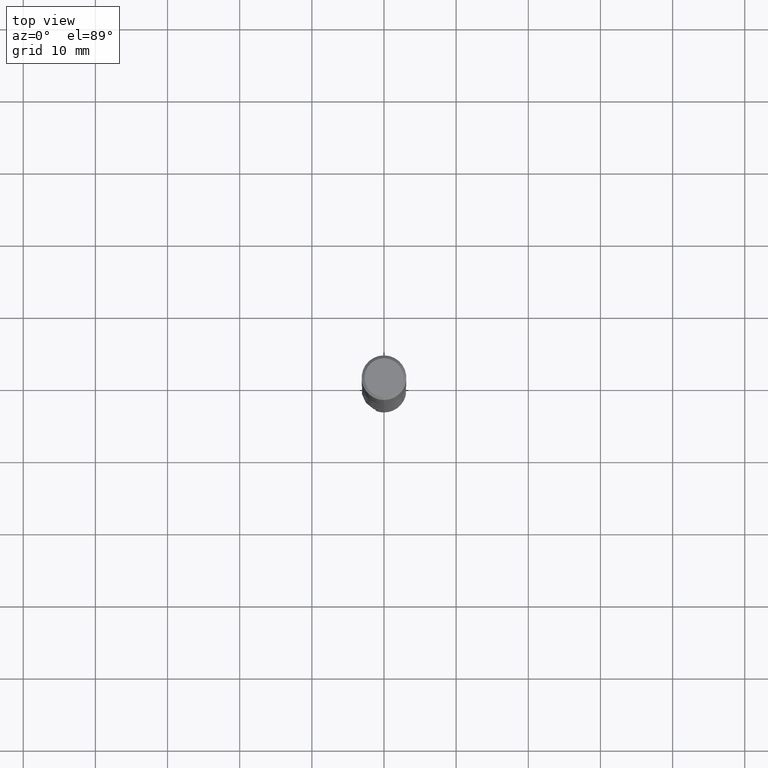
[diagram: clean part render]
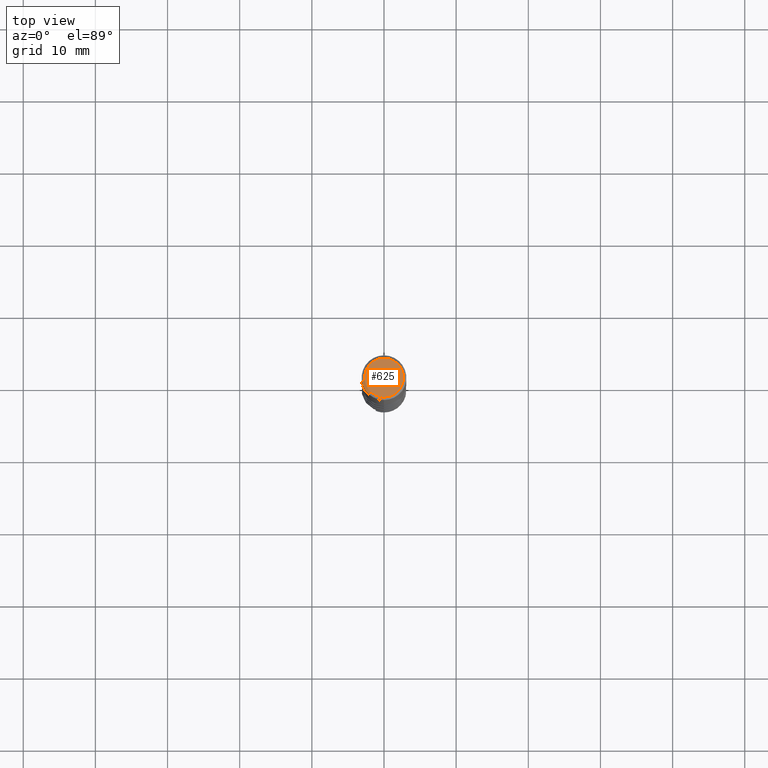
[diagram: same view with one face highlighted and labeled with its STEP entity id]
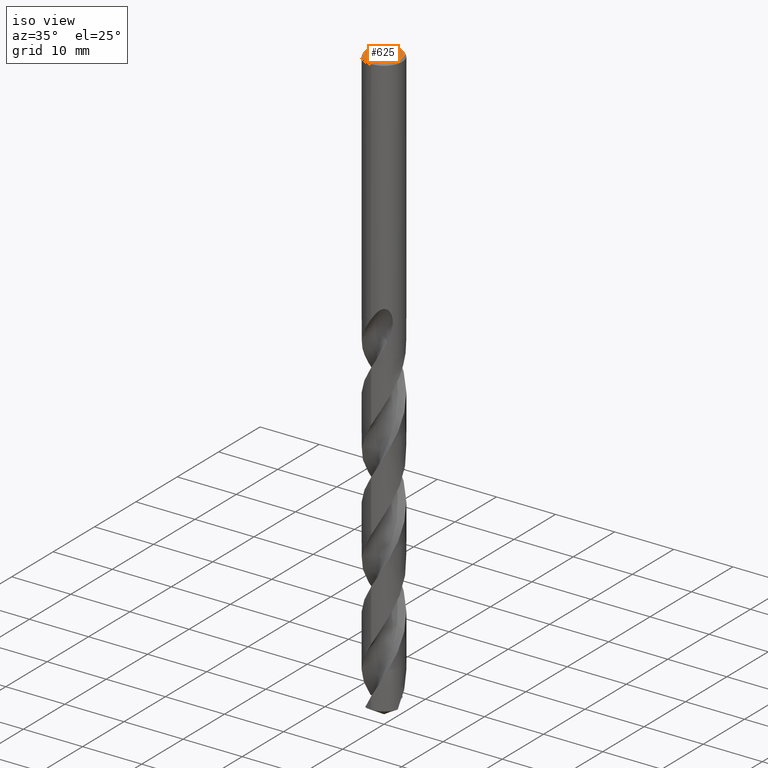
[diagram: same view with one face highlighted and labeled with its STEP entity id]
A machine part, top view. The second image highlights one B-rep face of the part: STEP entity #625.
A second angle (iso view) of the same face is appended — the face is thin or edge-on in the first view.
In plain terms, the highlighted planar face has unit normal (-0, 0, 1).
Its self-contained STEP definition (entity closure, byte-faithful):
#293=VERTEX_POINT('',#832);
#497=VERTEX_POINT('',#1054);
#625=ADVANCED_FACE('',(#1190),#1191,.T.);
#699=EDGE_CURVE('',#293,#497,#1271,.T.);
#759=EDGE_CURVE('',#497,#293,#1339,.T.);
#832=CARTESIAN_POINT('',(0.0,2.7,0.0));
#1054=CARTESIAN_POINT('',(3.30643715532042E-016,-2.7,0.0));
#1190=FACE_OUTER_BOUND('',#8591,.T.);
#1191=PLANE('',#8592);
#1271=CIRCLE('',#10137,2.7);
#1339=CIRCLE('',#12071,2.7);
#8591=EDGE_LOOP('',(#15110,#15111));
#8592=AXIS2_PLACEMENT_3D('',#15112,#15113,#15114);
#10137=AXIS2_PLACEMENT_3D('',#15183,#15184,#15185);
#12071=AXIS2_PLACEMENT_3D('',#15273,#15274,#15275);
#15110=ORIENTED_EDGE('',*,*,#699,.F.);
#15111=ORIENTED_EDGE('',*,*,#759,.F.);
#15112=CARTESIAN_POINT('',(0.0,1.35,0.0));
#15113=DIRECTION('',(-0.0,0.0,1.0));
#15114=DIRECTION('',(0.0,-1.0,0.0));
#15183=CARTESIAN_POINT('',(0.0,0.0,0.0));
#15184=DIRECTION('',(0.0,0.0,-1.0));
#15185=DIRECTION('',(0.0,1.0,0.0));
#15273=CARTESIAN_POINT('',(0.0,0.0,0.0));
#15274=DIRECTION('',(0.0,0.0,-1.0));
#15275=DIRECTION('',(0.0,1.0,0.0));